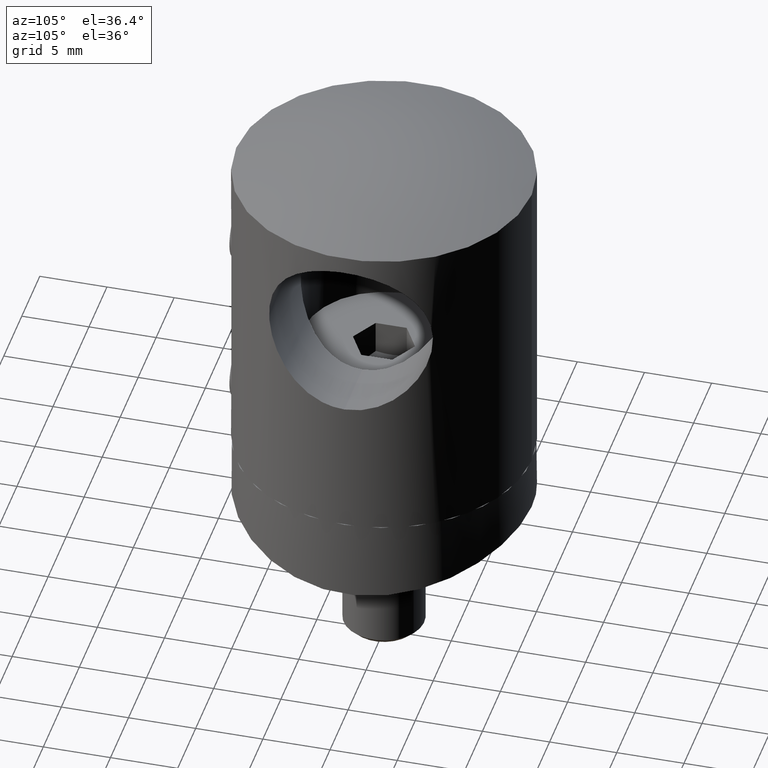
[diagram: clean part render]
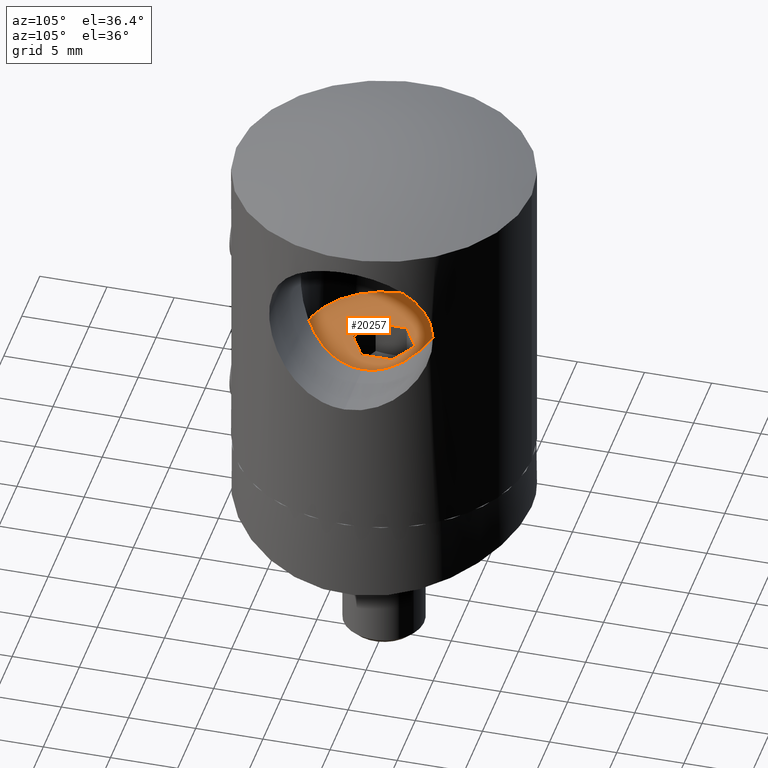
[diagram: same view with one face highlighted and labeled with its STEP entity id]
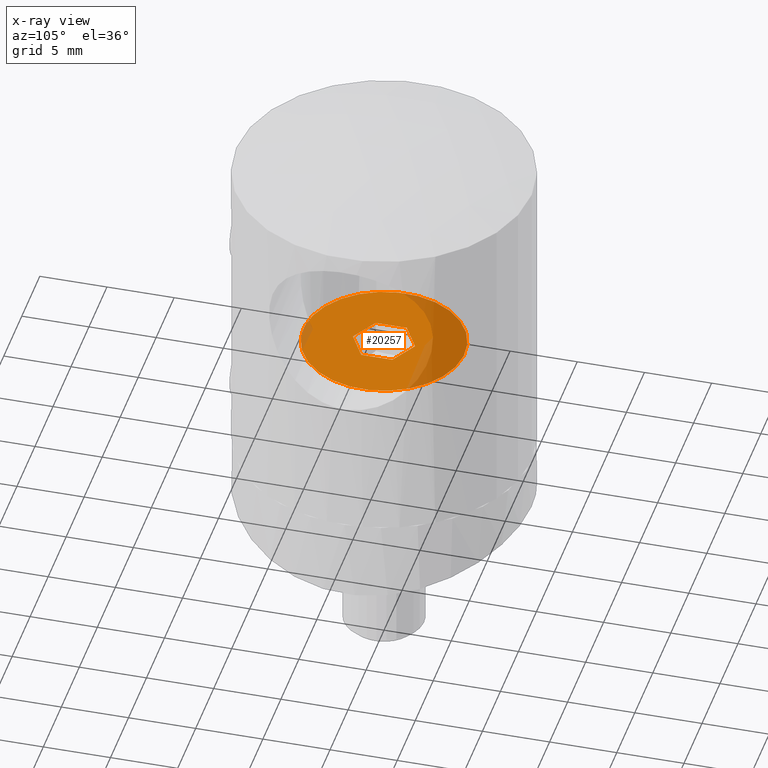
[diagram: x-ray of the same camera — body ghosted, the highlighted face saturated]
A machine part, auxiliary view. The second image highlights one B-rep face of the part: STEP entity #20257.
The next image is the same camera in x-ray: the body ghosted, the highlighted face saturated — about 27% of this face is hidden behind the body in this view.
In plain terms, the highlighted planar face has unit normal (0, 0, 1).
Its self-contained STEP definition (entity closure, byte-faithful):
#30 = DIRECTION ( 'NONE',  ( 1.000000000000000000, 3.716667456214871070E-33, 2.275802451874338536E-49 ) ) ;
#216 = CARTESIAN_POINT ( 'NONE',  ( 0.000000000000000000, 12.50000000000000000, -1.540743955509788682E-30 ) ) ;
#217 = CARTESIAN_POINT ( 'NONE',  ( -1.154700538379254349, 12.50000000000000000, -2.000000000000005329 ) ) ;
#393 = CARTESIAN_POINT ( 'NONE',  ( 2.309401076758509141, 12.50000000000000000, -5.356383575155095602E-16 ) ) ;
#495 = DIRECTION ( 'NONE',  ( 0.000000000000000000, 1.000000000000000000, 8.628166150854801295E-32 ) ) ;
#506 = LINE ( 'NONE', #393, #18742 ) ;
#567 = DIRECTION ( 'NONE',  ( -0.4999999999999999445, -8.628166150854800200E-32, 0.8660254037844387076 ) ) ;
#746 = EDGE_CURVE ( 'NONE', #18542, #2932, #8294, .T. ) ;
#1352 = VERTEX_POINT ( 'NONE', #21348 ) ;
#2055 = DIRECTION ( 'NONE',  ( -0.5000000000000003331, 8.011868568650888012E-32, -0.8660254037844384856 ) ) ;
#2187 = AXIS2_PLACEMENT_3D ( 'NONE', #12083, #495, #12154 ) ;
#2291 = AXIS2_PLACEMENT_3D ( 'NONE', #216, #9391, #18315 ) ;
#2904 = DIRECTION ( 'NONE',  ( 0.5000000000000003331, -8.628166150854802390E-32, 0.8660254037844384856 ) ) ;
#2932 = VERTEX_POINT ( 'NONE', #6644 ) ;
#3124 = EDGE_CURVE ( 'NONE', #10789, #18542, #5409, .T. ) ;
#3969 = ORIENTED_EDGE ( 'NONE', *, *, #14397, .F. ) ;
#4432 = LINE ( 'NONE', #9493, #18219 ) ;
#4785 = LINE ( 'NONE', #16834, #11545 ) ;
#5409 = LINE ( 'NONE', #15043, #15823 ) ;
#5600 = EDGE_LOOP ( 'NONE', ( #9685, #14210, #14865, #3969, #20734, #6869 ) ) ;
#6088 = DIRECTION ( 'NONE',  ( 0.5000000000000001110, 9.244463733058716768E-32, -0.8660254037844387076 ) ) ;
#6189 = VERTEX_POINT ( 'NONE', #17912 ) ;
#6644 = CARTESIAN_POINT ( 'NONE',  ( -2.309401076758508253, 12.50000000000000000, -1.186159661006811925E-15 ) ) ;
#6869 = ORIENTED_EDGE ( 'NONE', *, *, #7074, .F. ) ;
#7072 = CIRCLE ( 'NONE', #2291, 6.000000000000010658 ) ;
#7074 = EDGE_CURVE ( 'NONE', #13068, #1352, #4785, .T. ) ;
#7657 = CARTESIAN_POINT ( 'NONE',  ( -1.154700538379254349, 12.50000000000000000, -2.000000000000005329 ) ) ;
#8016 = CARTESIAN_POINT ( 'NONE',  ( 0.000000000000000000, 12.50000000000000000, -6.000000000000010658 ) ) ;
#8294 = LINE ( 'NONE', #217, #17905 ) ;
#8645 = DIRECTION ( 'NONE',  ( -1.000000000000000000, -3.716667456214871070E-33, -2.275802451874338536E-49 ) ) ;
#8739 = CARTESIAN_POINT ( 'NONE',  ( 1.154700538379251240, 12.50000000000000000, -2.000000000000000888 ) ) ;
#8886 = EDGE_LOOP ( 'NONE', ( #14937 ) ) ;
#8964 = CARTESIAN_POINT ( 'NONE',  ( -1.154700538379252794, 12.50000000000000000, 2.000000000000003553 ) ) ;
#9391 = DIRECTION ( 'NONE',  ( 0.000000000000000000, -1.000000000000000000, 9.860761315262647568E-32 ) ) ;
#9493 = CARTESIAN_POINT ( 'NONE',  ( 1.154700538379254793, 12.50000000000000000, 2.000000000000003553 ) ) ;
#9537 = FACE_OUTER_BOUND ( 'NONE', #8886, .T. ) ;
#9685 = ORIENTED_EDGE ( 'NONE', *, *, #19687, .F. ) ;
#10073 = LINE ( 'NONE', #12022, #18398 ) ;
#10789 = VERTEX_POINT ( 'NONE', #8739 ) ;
#11545 = VECTOR ( 'NONE', #30, 1000.000000000000000 ) ;
#12022 = CARTESIAN_POINT ( 'NONE',  ( -2.309401076758508253, 12.50000000000000000, -1.186159661006811925E-15 ) ) ;
#12083 = CARTESIAN_POINT ( 'NONE',  ( 0.000000000000000000, 12.50000000000000000, -1.540743955509788682E-30 ) ) ;
#12154 = DIRECTION ( 'NONE',  ( 0.000000000000000000, -8.628166150854801295E-32, 1.000000000000000000 ) ) ;
#12583 = EDGE_CURVE ( 'NONE', #1352, #6189, #4432, .T. ) ;
#13068 = VERTEX_POINT ( 'NONE', #8964 ) ;
#13949 = FACE_BOUND ( 'NONE', #5600, .T. ) ;
#14210 = ORIENTED_EDGE ( 'NONE', *, *, #746, .F. ) ;
#14397 = EDGE_CURVE ( 'NONE', #6189, #10789, #506, .T. ) ;
#14865 = ORIENTED_EDGE ( 'NONE', *, *, #3124, .F. ) ;
#14937 = ORIENTED_EDGE ( 'NONE', *, *, #21394, .F. ) ;
#15043 = CARTESIAN_POINT ( 'NONE',  ( 1.154700538379251240, 12.50000000000000000, -2.000000000000000888 ) ) ;
#15558 = VERTEX_POINT ( 'NONE', #8016 ) ;
#15823 = VECTOR ( 'NONE', #8645, 1000.000000000000000 ) ;
#16834 = CARTESIAN_POINT ( 'NONE',  ( -1.154700538379252794, 12.50000000000000000, 2.000000000000003553 ) ) ;
#17905 = VECTOR ( 'NONE', #567, 999.9999999999998863 ) ;
#17912 = CARTESIAN_POINT ( 'NONE',  ( 2.309401076758509141, 12.50000000000000000, -5.356383575155095602E-16 ) ) ;
#18219 = VECTOR ( 'NONE', #6088, 999.9999999999998863 ) ;
#18315 = DIRECTION ( 'NONE',  ( 0.000000000000000000, 0.000000000000000000, -1.000000000000000000 ) ) ;
#18398 = VECTOR ( 'NONE', #2904, 1000.000000000000114 ) ;
#18542 = VERTEX_POINT ( 'NONE', #7657 ) ;
#18742 = VECTOR ( 'NONE', #2055, 1000.000000000000114 ) ;
#19687 = EDGE_CURVE ( 'NONE', #2932, #13068, #10073, .T. ) ;
#20257 = ADVANCED_FACE ( 'NONE', ( #13949, #9537 ), #20378, .T. ) ;
#20378 = PLANE ( 'NONE',  #2187 ) ;
#20734 = ORIENTED_EDGE ( 'NONE', *, *, #12583, .F. ) ;
#21348 = CARTESIAN_POINT ( 'NONE',  ( 1.154700538379254793, 12.50000000000000000, 2.000000000000003553 ) ) ;
#21394 = EDGE_CURVE ( 'NONE', #15558, #15558, #7072, .T. ) ;